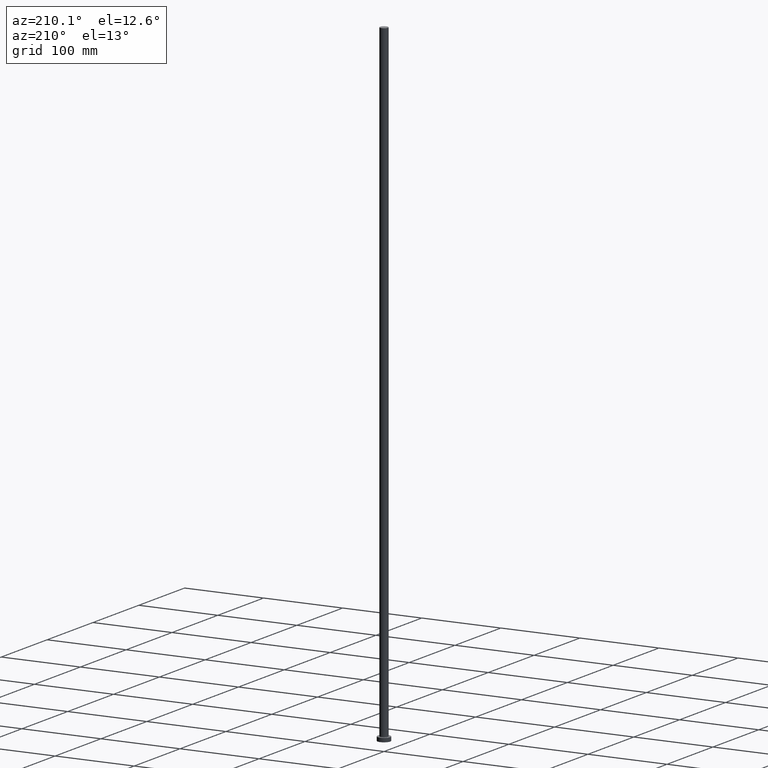
[diagram: clean part render]
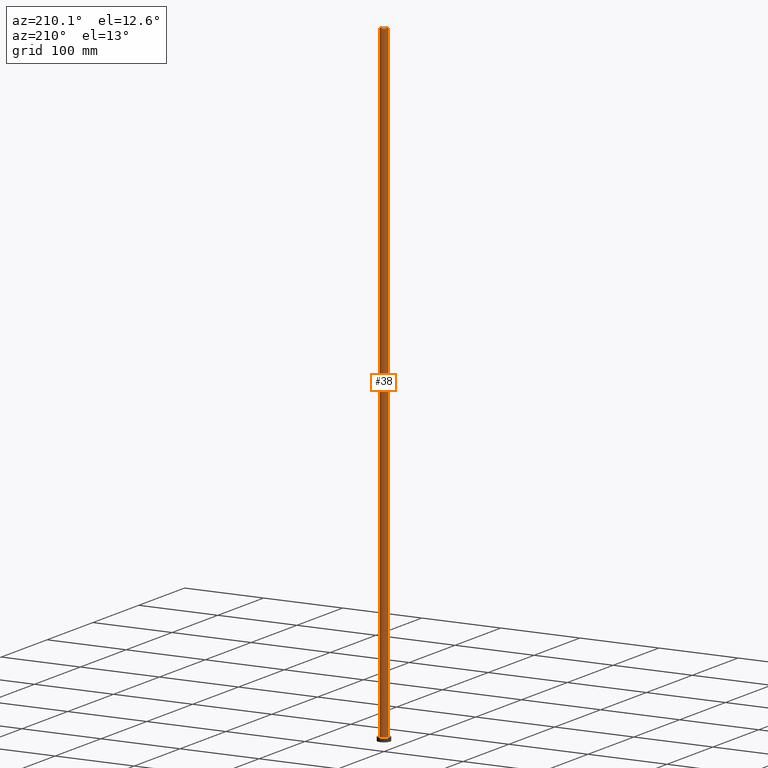
[diagram: same view with one face highlighted and labeled with its STEP entity id]
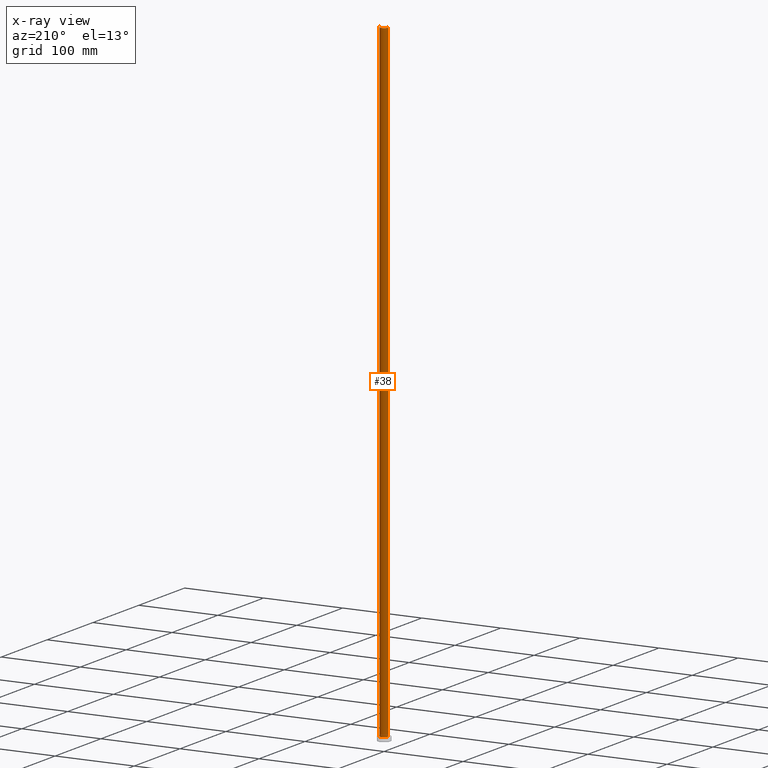
[diagram: x-ray of the same camera — body ghosted, the highlighted face saturated]
A machine part, auxiliary view. The second image highlights one B-rep face of the part: STEP entity #38.
The next image is the same camera in x-ray: the body ghosted, the highlighted face saturated — about 0% of this face is hidden behind the body in this view.
In plain terms, the highlighted cylindrical surface (edge-blend (fillet) strip) has radius 5.1 mm, axis along (-0, -0, -1).
Its self-contained STEP definition (entity closure, byte-faithful):
#8 = AXIS2_PLACEMENT_3D ( 'NONE', #193, #58, #211 ) ;
#15 = CARTESIAN_POINT ( 'NONE',  ( 5.100000000000001421, 6.245698675651502811E-16, 800.0000000000000000 ) ) ;
#16 = CARTESIAN_POINT ( 'NONE',  ( -5.100000000000001421, 0.000000000000000000, 800.0000000000000000 ) ) ;
#38 = ADVANCED_FACE ( 'NONE', ( #207 ), #167, .T. ) ;
#42 = VERTEX_POINT ( 'NONE', #107 ) ;
#45 = EDGE_CURVE ( 'NONE', #254, #205, #199, .T. ) ;
#50 = AXIS2_PLACEMENT_3D ( 'NONE', #150, #229, #127 ) ;
#53 = DIRECTION ( 'NONE',  ( 1.000000000000000000, 0.000000000000000000, 0.000000000000000000 ) ) ;
#55 = CIRCLE ( 'NONE', #8, 5.100000000000001421 ) ;
#56 = CARTESIAN_POINT ( 'NONE',  ( 5.100000000000001421, 6.245698675651502811E-16, 5.000000000000000000 ) ) ;
#58 = DIRECTION ( 'NONE',  ( 0.000000000000000000, 0.000000000000000000, 1.000000000000000000 ) ) ;
#65 = DIRECTION ( 'NONE',  ( 0.000000000000000000, 0.000000000000000000, 1.000000000000000000 ) ) ;
#80 = CARTESIAN_POINT ( 'NONE',  ( -5.100000000000001421, 0.000000000000000000, 5.000000000000000000 ) ) ;
#84 = EDGE_CURVE ( 'NONE', #165, #254, #148, .T. ) ;
#90 = AXIS2_PLACEMENT_3D ( 'NONE', #91, #65, #53 ) ;
#91 = CARTESIAN_POINT ( 'NONE',  ( 0.000000000000000000, 0.000000000000000000, 5.000000000000000000 ) ) ;
#107 = CARTESIAN_POINT ( 'NONE',  ( -5.100000000000001421, 0.000000000000000000, 800.0000000000000000 ) ) ;
#113 = LINE ( 'NONE', #16, #221 ) ;
#123 = EDGE_LOOP ( 'NONE', ( #253, #203, #234, #154 ) ) ;
#127 = DIRECTION ( 'NONE',  ( -1.000000000000000000, 0.000000000000000000, 0.000000000000000000 ) ) ;
#128 = CARTESIAN_POINT ( 'NONE',  ( 5.100000000000001421, 6.245698675651502811E-16, 800.0000000000000000 ) ) ;
#145 = EDGE_CURVE ( 'NONE', #165, #42, #55, .T. ) ;
#148 = LINE ( 'NONE', #128, #204 ) ;
#150 = CARTESIAN_POINT ( 'NONE',  ( 0.000000000000000000, 0.000000000000000000, 800.0000000000000000 ) ) ;
#154 = ORIENTED_EDGE ( 'NONE', *, *, #201, .F. ) ;
#165 = VERTEX_POINT ( 'NONE', #15 ) ;
#167 = CYLINDRICAL_SURFACE ( 'NONE', #50, 5.100000000000001421 ) ;
#193 = CARTESIAN_POINT ( 'NONE',  ( 0.000000000000000000, 0.000000000000000000, 800.0000000000000000 ) ) ;
#199 = CIRCLE ( 'NONE', #90, 5.100000000000001421 ) ;
#201 = EDGE_CURVE ( 'NONE', #42, #205, #113, .T. ) ;
#203 = ORIENTED_EDGE ( 'NONE', *, *, #84, .T. ) ;
#204 = VECTOR ( 'NONE', #209, 1000.000000000000000 ) ;
#205 = VERTEX_POINT ( 'NONE', #80 ) ;
#207 = FACE_OUTER_BOUND ( 'NONE', #123, .T. ) ;
#209 = DIRECTION ( 'NONE',  ( -0.000000000000000000, -0.000000000000000000, -1.000000000000000000 ) ) ;
#211 = DIRECTION ( 'NONE',  ( 1.000000000000000000, 0.000000000000000000, 0.000000000000000000 ) ) ;
#221 = VECTOR ( 'NONE', #251, 1000.000000000000000 ) ;
#229 = DIRECTION ( 'NONE',  ( -0.000000000000000000, -0.000000000000000000, -1.000000000000000000 ) ) ;
#234 = ORIENTED_EDGE ( 'NONE', *, *, #45, .T. ) ;
#251 = DIRECTION ( 'NONE',  ( -0.000000000000000000, -0.000000000000000000, -1.000000000000000000 ) ) ;
#253 = ORIENTED_EDGE ( 'NONE', *, *, #145, .F. ) ;
#254 = VERTEX_POINT ( 'NONE', #56 ) ;